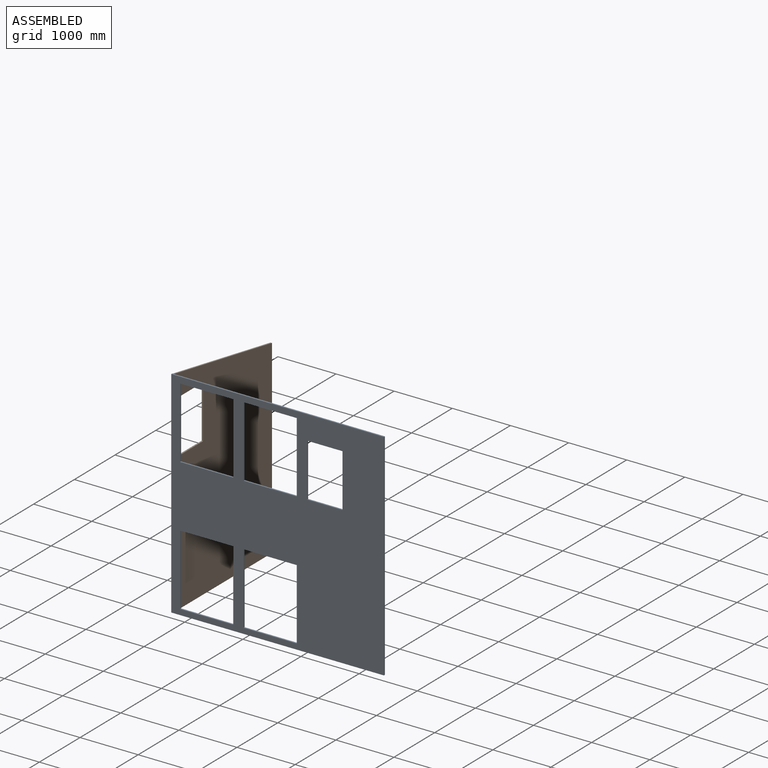
[diagram: assembled view]
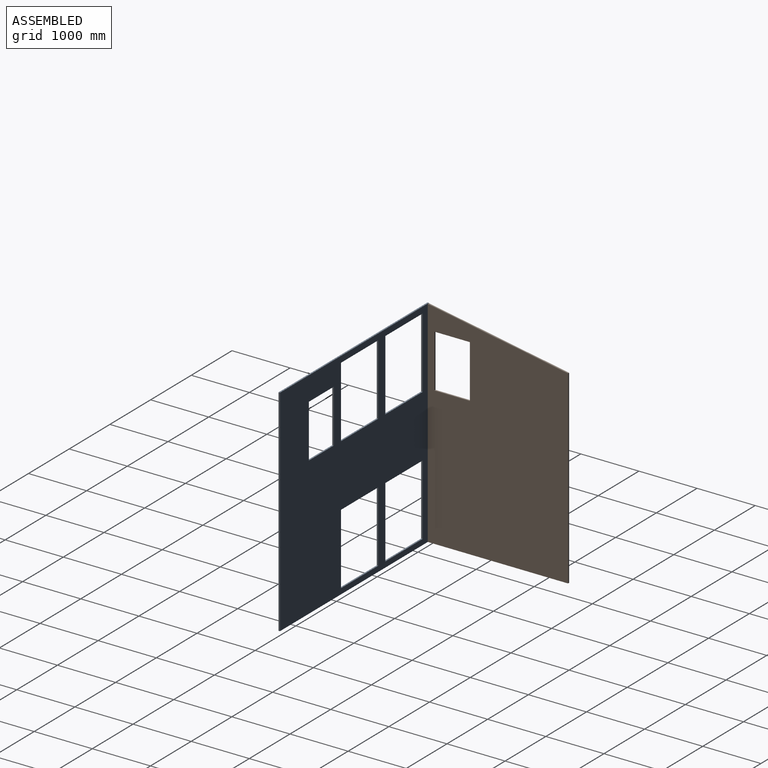
[diagram: assembled view, second angle]
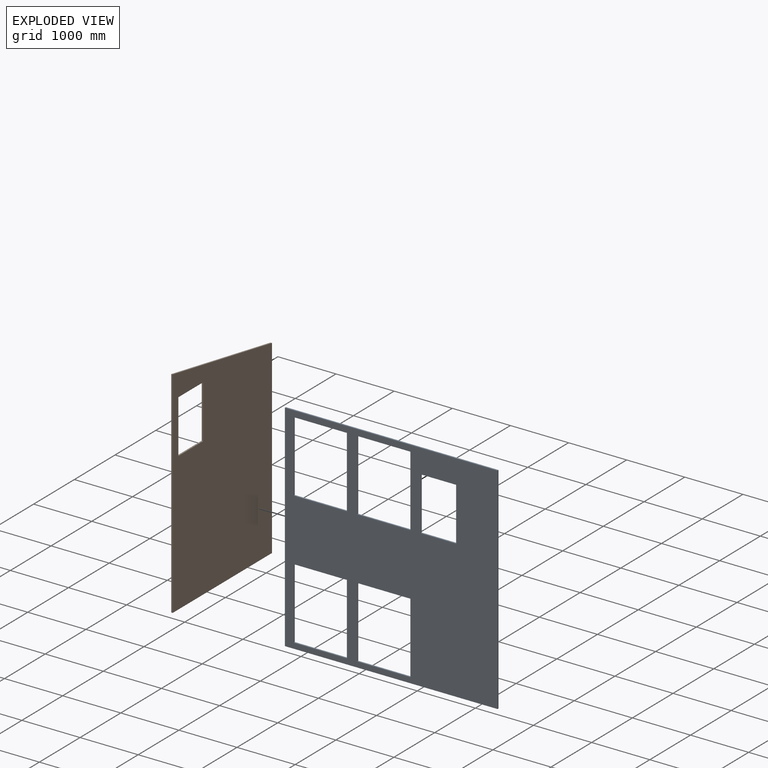
[diagram: exploded view]
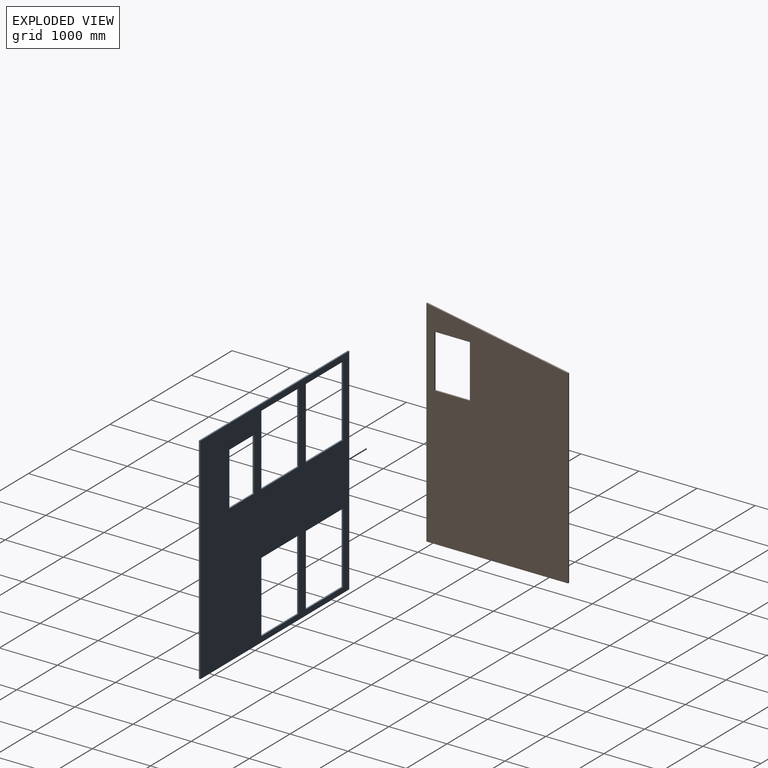
[diagram: exploded view, second angle]
ASSEMBLY  parts=2 mates=3
PART A: 26 faces, bbox 3657.6x25.4x3707.1 mm
  f0: plane 3707.05x3657.6mm, normal (0,1,0), area 8542155.8mm2, adj f2,f3,f4,f5,f6,f7,f8,f9
  f1: plane 3707.05x3657.6mm, normal (0,-1,0), area 8542155.8mm2, adj f2,f3,f4,f5,f6,f7,f8,f9
  f2: plane 3707.05x25.4mm, normal (1,0,0), area 94159.2mm2, adj f0,f1,f3,f5
  f3: plane 3657.6x25.4mm, normal (0,0,1), area 92903mm2, adj f0,f1,f2,f4
  f4: plane 3707.05x25.4mm, normal (-1,0,0), area 94159.2mm2, adj f0,f1,f3,f5
  f5: plane 3657.6x25.4mm, normal (0,0,-1), area 92903mm2, adj f0,f1,f2,f4
  f6: plane 914.4x25.4mm, normal (0,0,-1), area 23225.8mm2, adj f0,f1,f7,f9
  f7: plane 1219.2x25.4mm, normal (1,0,0), area 30967.7mm2, adj f0,f1,f6,f8
  f8: plane 914.4x25.4mm, normal (0,0,1), area 23225.8mm2, adj f0,f1,f7,f9
  f9: plane 1219.2x25.4mm, normal (-1,0,0), area 30967.7mm2, adj f0,f1,f6,f8
  f10: plane 914.4x25.4mm, normal (0,0,-1), area 23225.8mm2, adj f0,f1,f11,f13
  f11: plane 1219.2x25.4mm, normal (1,0,0), area 30967.7mm2, adj f0,f1,f10,f12
  f12: plane 914.4x25.4mm, normal (0,0,1), area 23225.8mm2, adj f0,f1,f11,f13
  f13: plane 1219.2x25.4mm, normal (-1,0,0), area 30967.7mm2, adj f0,f1,f10,f12
  f14: plane 609.6x25.4mm, normal (0,0,-1), area 15483.8mm2, adj f0,f1,f15,f17
  f15: plane 914.4x25.4mm, normal (1,0,0), area 23225.8mm2, adj f0,f1,f14,f16
  f16: plane 609.6x25.4mm, normal (0,0,1), area 15483.8mm2, adj f0,f1,f15,f17
  f17: plane 914.4x25.4mm, normal (-1,0,0), area 23225.8mm2, adj f0,f1,f14,f16
  f18: plane 914.4x25.4mm, normal (0,0,-1), area 23225.8mm2, adj f0,f1,f19,f21
  f19: plane 1219.2x25.4mm, normal (1,0,0), area 30967.7mm2, adj f0,f1,f18,f20
  f20: plane 914.4x25.4mm, normal (0,0,1), area 23225.8mm2, adj f0,f1,f19,f21
  f21: plane 1219.2x25.4mm, normal (-1,0,0), area 30967.7mm2, adj f0,f1,f18,f20
  f22: plane 914.4x25.4mm, normal (0,0,-1), area 23225.8mm2, adj f0,f1,f23,f25
  f23: plane 1219.2x25.4mm, normal (1,0,0), area 30967.7mm2, adj f0,f1,f22,f24
  f24: plane 914.4x25.4mm, normal (0,0,1), area 23225.8mm2, adj f0,f1,f23,f25
  f25: plane 1219.2x25.4mm, normal (-1,0,0), area 30967.7mm2, adj f0,f1,f22,f24
PART B: 10 faces, bbox 25.4x2438.4x3707 mm
  f0: plane 2438.4x25.4mm, normal (0,0,-1), area 61935.4mm2, adj f1,f3,f4,f5
  f1: plane 3265.6x25.4mm, normal (0,1,0), area 82946.1mm2, adj f0,f2,f4,f5
  f2: plane 2438.4x441.45mm, normal (0,0.18,0.98), area 62942.2mm2, adj f1,f3,f4,f5
  f3: plane 3707.05x25.4mm, normal (0,-1,0), area 94159mm2, adj f0,f2,f4,f5
  f4: plane 3707.05x2438.4mm, normal (1,0,0), area 7943629.8mm2, adj f0,f1,f2,f3,f6,f7,f8,f9
  f5: plane 3707.05x2438.4mm, normal (-1,0,0), area 7943629.8mm2, adj f0,f1,f2,f3,f6,f7,f8,f9
  f6: plane 914.4x25.4mm, normal (0,-1,0), area 23225.8mm2, adj f4,f5,f7,f9
  f7: plane 609.6x25.4mm, normal (0,0,-1), area 15483.8mm2, adj f4,f5,f6,f8
  f8: plane 914.4x25.4mm, normal (0,1,0), area 23225.8mm2, adj f4,f5,f7,f9
  f9: plane 609.6x25.4mm, normal (0,0,1), area 15483.8mm2, adj f4,f5,f6,f8
PLACE A t=(596.9,0,-354.01)mm
PLACE B t=(-1231.9,1219.2,-354.01)mm
MATE planar B.f0 <-> A.f5  axis (0,0,-1) through (-1219.2,1219.2,179.39)mm
MATE planar B.f3 <-> A.f1  axis (0,-1,0) through (-1219.2,0,2032.92)mm
MATE planar B.f5 <-> A.f4  axis (-1,0,0) through (-1231.9,1246.03,1847.87)mm
